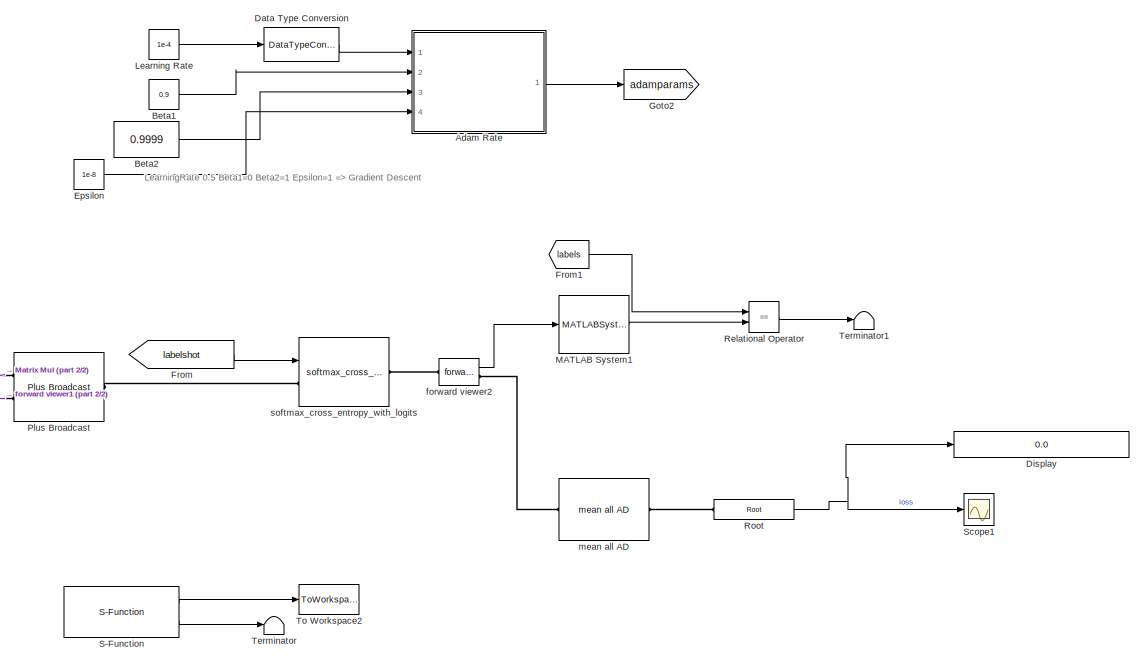
[diagram: root canvas - part 1/2, right side, full height]
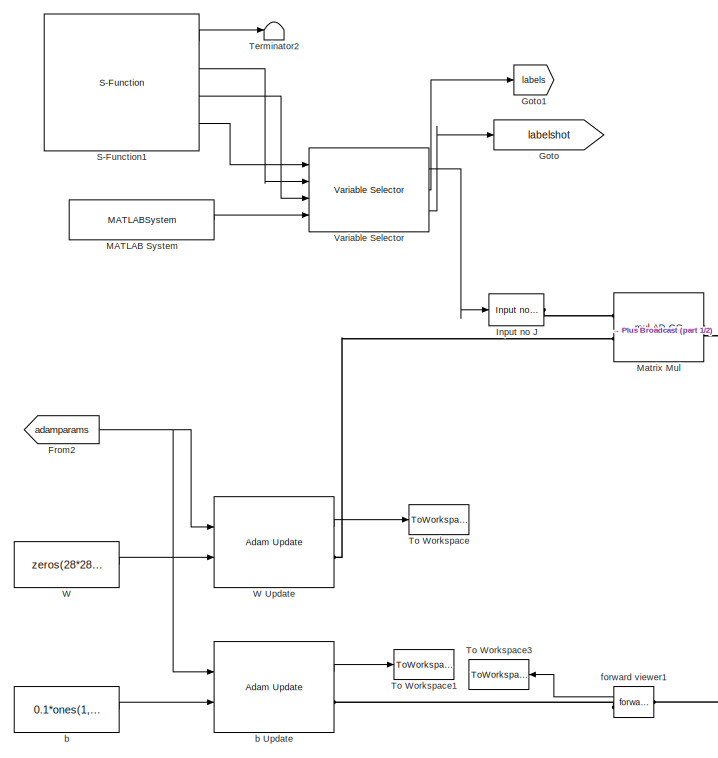
[diagram: root canvas - part 2/2, left side, full height]
MODEL slx_7c7939cf6449
KIND model
CONFIG AbsTol = auto
CONFIG EnableMultiTasking = off
CONFIG FixedStep = 1
CONFIG MaxStep = auto
CONFIG MinStep = auto
CONFIG RelTol = 1e-3
CONFIG SampleTimeConstraint = Unconstrained
CONFIG Solver = FixedStepDiscrete
CONFIG SolverName = FixedStepDiscrete
CONFIG StartTime = 0.0
CONFIG StopTime = 1000
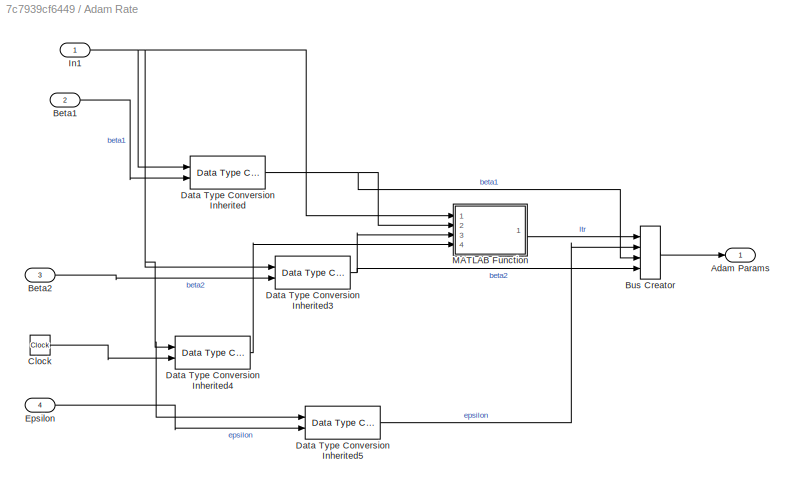
BLOCK [SubSystem] Adam Rate
  Ports = [4, 1]
  RequestExecContextInheritance = off
  Variant = off
BLOCK [Outport] Adam Rate/Adam Params
  IconDisplay = Port number
BLOCK [Inport] Adam Rate/Beta1
  IconDisplay = Port number
  Port = 2
BLOCK [Inport] Adam Rate/Beta2
  IconDisplay = Port number
  Port = 3
BLOCK [BusCreator] Adam Rate/Bus Creator
  DisplayOption = bar
  InheritFromInputs = on
  Inputs = 4
  Ports = [4, 1]
BLOCK [Clock] Adam Rate/Clock
BLOCK [Reference] Adam Rate/Data Type Conversion Inherited  REF=simulink/Signal
Attributes/Data Type
Conversion
Inherited
  Ports = [2, 1]
  SourceBlock = simulink/Signal\nAttributes/Data Type\nConversion\nInherited
  SourceProductBaseCode = SL
  SourceProductName = Simulink
  SourceType = Conversion Inherited
BLOCK [Reference] Adam Rate/Data Type Conversion Inherited3  REF=simulink/Signal
Attributes/Data Type
Conversion
Inherited
  Ports = [2, 1]
  SourceBlock = simulink/Signal\nAttributes/Data Type\nConversion\nInherited
  SourceProductBaseCode = SL
  SourceProductName = Simulink
  SourceType = Conversion Inherited
BLOCK [Reference] Adam Rate/Data Type Conversion Inherited4  REF=simulink/Signal
Attributes/Data Type
Conversion
Inherited
  Ports = [2, 1]
  SourceBlock = simulink/Signal\nAttributes/Data Type\nConversion\nInherited
  SourceProductBaseCode = SL
  SourceProductName = Simulink
  SourceType = Conversion Inherited
BLOCK [Reference] Adam Rate/Data Type Conversion Inherited5  REF=simulink/Signal
Attributes/Data Type
Conversion
Inherited
  Ports = [2, 1]
  SourceBlock = simulink/Signal\nAttributes/Data Type\nConversion\nInherited
  SourceProductBaseCode = SL
  SourceProductName = Simulink
  SourceType = Conversion Inherited
BLOCK [Inport] Adam Rate/Epsilon
  IconDisplay = Port number
  Port = 4
BLOCK [Inport] Adam Rate/In1
  IconDisplay = Port number
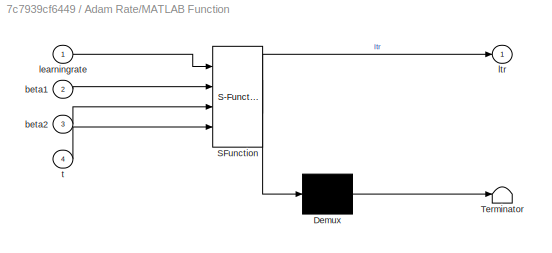
BLOCK [SubSystem] Adam Rate/MATLAB Function
  ErrorFcn = Stateflow.Translate.translate
  PermitHierarchicalResolution = ExplicitOnly
  Ports = [4, 1]
  RequestExecContextInheritance = off
  SFBlockType = MATLAB Function
  TreatAsAtomicUnit = on
  Variant = off
BLOCK [Demux] Adam Rate/MATLAB Function/ Demux 
  Outputs = 1
  Ports = [1, 1]
BLOCK [S-Function] Adam Rate/MATLAB Function/ SFunction 
  EnableBusSupport = on
  FunctionName = sf_sfun
  PortCounts = [4 2]
  Ports = [4, 2]
  SFcnIsStateOwnerBlock = off
  SFunctionDeploymentMode = off
  Tag = Stateflow S-Function mnist_softmax_adam 2
BLOCK [Terminator] Adam Rate/MATLAB Function/ Terminator 
BLOCK [Inport] Adam Rate/MATLAB Function/beta1
  IconDisplay = Port number
  Port = 2
BLOCK [Inport] Adam Rate/MATLAB Function/beta2
  IconDisplay = Port number
  Port = 3
BLOCK [Inport] Adam Rate/MATLAB Function/learningrate
  IconDisplay = Port number
BLOCK [Outport] Adam Rate/MATLAB Function/ltr
  IconDisplay = Port number
BLOCK [Inport] Adam Rate/MATLAB Function/t
  IconDisplay = Port number
  Port = 4
BLOCK [Constant] Beta1
  Value = 0.9
BLOCK [Constant] Beta2
  Value = 0.9999
BLOCK [DataTypeConversion] Data Type Conversion
  OutDataTypeStr = single
  RndMeth = Floor
  SaturateOnIntegerOverflow = off
BLOCK [Display] Display
  Decimation = 1
  Ports = [1]
BLOCK [Constant] Epsilon
  Value = 1e-8
BLOCK [From] From
  GotoTag = labelshot
BLOCK [From] From1
  GotoTag = labels
BLOCK [From] From2
  GotoTag = adamparams
BLOCK [Goto] Goto
  GotoTag = labelshot
BLOCK [Goto] Goto1
  GotoTag = labels
BLOCK [Goto] Goto2
  GotoTag = adamparams
BLOCK [Reference] Input no J  REF=ad_blocks/Input no J  (lib defined in slx_3af8d3de87d3)
  Ports = [1, 0, 0, 0, 0, 0, 1]
  SourceBlock = ad_blocks/Input no J
BLOCK [Constant] Learning Rate
  Value = 1e-4
BLOCK [MATLABSystem] MATLAB System
  MaskDisplay = disp('MnistSystemInt');\nport_label('output',1,'indices');
  MaskType = MnistSystemInt
  Ports = [0, 1]
  SimulateUsing = Interpreted execution
  System = MnistSystemInt
  items = 100
  shuffle = 0
  trainset = 1
BLOCK [MATLABSystem] MATLAB System1
  MaskDisplay = disp('ArgmaxSystemD2');\nport_label('input',1,'x');\nport_label('output',1,'y');
  MaskType = ArgmaxSystemD2
  Ports = [1, 1]
  SimulateUsing = Code generation
  System = ArgmaxSystemD2
BLOCK [Reference] Matrix Mul  REF=ad_blocks/mul AD CC  (lib defined in slx_3af8d3de87d3)
  Ports = [0, 0, 0, 0, 0, 2, 1]
  SourceBlock = ad_blocks/mul AD CC
  SourceType = SubSystem
BLOCK [Reference] Plus Broadcast  REF=ad_blocks/Plus Broadcast  (lib defined in slx_3af8d3de87d3)
  Ports = [0, 0, 0, 0, 0, 2, 1]
  SourceBlock = ad_blocks/Plus Broadcast
  SourceType = SubSystem
BLOCK [RelationalOperator] Relational Operator
  InputSameDT = off
  Operator = ==
  OutDataTypeStr = boolean
  Ports = [2, 1]
  RndMeth = Simplest
BLOCK [Reference] Root  REF=ad_blocks/Root  (lib defined in slx_3af8d3de87d3)
  Description = Top level AD block: gets the incoming value, pushes the scalar 1 gradient
  Ports = [0, 1, 0, 0, 0, 1]
  SourceBlock = ad_blocks/Root
BLOCK [S-Function] S-Function
  EnableBusSupport = off
  FunctionName = SyncTime
  Parameters = dt
  Ports = [0, 2]
  Priority = 1024
  SFcnIsStateOwnerBlock = off
  SFunctionDeploymentMode = off
BLOCK [S-Function] S-Function1
  EnableBusSupport = off
  FunctionName = sfun_loadmnist
  Parameters = 1
  Ports = [0, 4]
  SFcnIsStateOwnerBlock = off
  SFunctionDeploymentMode = off
BLOCK [Scope] Scope1
  Commented = on
  NumInputPorts = 1
  Ports = [1]
  ScopeSpecificationString = Simulink.scopes.TimeScopeBlockCfg('CurrentConfiguration', extmgr.ConfigurationSet(extmgr.Configuration('Core','General UI',true),extmgr.Configuration('Core','Source UI',true),extmgr.Configuration('Sources','WiredSimulink',true,'DataLoggingVariableName','ScopeData1'),extmgr.Configuration('Visuals','Time Domain',true,'SerializedDisplays',{struct('MinYLimReal','-0.05042','MaxYLimReal','2.56403','YLab...<+1389ch>
BLOCK [Terminator] Terminator
BLOCK [Terminator] Terminator1
BLOCK [Terminator] Terminator2
BLOCK [ToWorkspace] To Workspace
  FixptAsFi = on
  MaxDataPoints = inf
  Ports = [1]
  SampleTime = -1
  Save2DSignal = 3-D array (concatenate along third dimension)
  SaveFormat = Timeseries
  VariableName = Wout
BLOCK [ToWorkspace] To Workspace1
  FixptAsFi = on
  MaxDataPoints = inf
  Ports = [1]
  SampleTime = -1
  Save2DSignal = 3-D array (concatenate along third dimension)
  SaveFormat = Timeseries
  VariableName = bout
BLOCK [ToWorkspace] To Workspace2
  FixptAsFi = on
  MaxDataPoints = inf
  Ports = [1]
  SampleTime = 1
  Save2DSignal = 3-D array (concatenate along third dimension)
  SaveFormat = Timeseries
  VariableName = realtout
BLOCK [ToWorkspace] To Workspace3
  FixptAsFi = on
  MaxDataPoints = inf
  Ports = [1]
  SampleTime = -1
  Save2DSignal = 3-D array (concatenate along third dimension)
  SaveFormat = Timeseries
  VariableName = Jb
BLOCK [Reference] Variable Selector  REF=dspindex/Variable
Selector
  Ports = [4, 3]
  SourceBlock = dspindex/Variable\nSelector
  SourceProductBaseCode = DS
  SourceProductName = DSP System Toolbox
  SourceType = Variable Selector
BLOCK [Constant] W
  OutDataTypeStr = Inherit: Inherit via back propagation
  Value = zeros(28*28,10)
BLOCK [Reference] W Update  REF=ad_blocks/Adam Update  (lib defined in slx_3af8d3de87d3)
  Ports = [2, 1, 0, 0, 0, 0, 1]
  SourceBlock = ad_blocks/Adam Update
  SourceType = SubSystem
BLOCK [Constant] b
  OutDataTypeStr = Inherit: Inherit via back propagation
  Value = 0.1*ones(1,10)
BLOCK [Reference] b Update  REF=ad_blocks/Adam Update  (lib defined in slx_3af8d3de87d3)
  Ports = [2, 1, 0, 0, 0, 0, 1]
  SourceBlock = ad_blocks/Adam Update
  SourceType = SubSystem
BLOCK [Reference] forward viewer1  REF=ad_blocks/forward viewer  (lib defined in slx_3af8d3de87d3)
  Ports = [0, 1, 0, 0, 0, 1, 1]
  SourceBlock = ad_blocks/forward viewer
BLOCK [Reference] forward viewer2  REF=ad_blocks/forward viewer  (lib defined in slx_3af8d3de87d3)
  Ports = [0, 1, 0, 0, 0, 1, 1]
  SourceBlock = ad_blocks/forward viewer
BLOCK [Reference] mean all AD  REF=ad_blocks/mean all AD  (lib defined in slx_3af8d3de87d3)
  Ports = [0, 0, 0, 0, 0, 1, 1]
  SourceBlock = ad_blocks/mean all AD
  SourceType = SubSystem
BLOCK [Reference] softmax_cross_entropy_with_logits  REF=ad_blocks/softmax_cross_entropy_with_logits  (lib defined in slx_3af8d3de87d3)
  Ports = [1, 0, 0, 0, 0, 1, 1]
  SourceBlock = ad_blocks/softmax_cross_entropy_with_logits
  SourceType = SubSystem
ANNOTATION (root): LearningRate 0.5 Beta1=0 Beta2=1 Epsilon=1 => Gradient Descent
LINE Adam Rate/Beta1:1 -> Adam Rate/Data Type Conversion Inherited:2
LINE Adam Rate/Beta2:1 -> Adam Rate/Data Type Conversion Inherited3:2
LINE Adam Rate/Bus Creator:1 -> Adam Rate/Adam Params:1
LINE Adam Rate/Clock:1 -> Adam Rate/Data Type Conversion Inherited4:2
NET Adam Rate/Data Type Conversion Inherited3:1 -> Adam Rate/Bus Creator:4, Adam Rate/MATLAB Function:3
LINE Adam Rate/Data Type Conversion Inherited4:1 -> Adam Rate/MATLAB Function:4
LINE Adam Rate/Data Type Conversion Inherited5:1 -> Adam Rate/Bus Creator:2
NET Adam Rate/Data Type Conversion Inherited:1 -> Adam Rate/Bus Creator:3, Adam Rate/MATLAB Function:2
LINE Adam Rate/Epsilon:1 -> Adam Rate/Data Type Conversion Inherited5:2
NET Adam Rate/In1:1 -> Adam Rate/Data Type Conversion Inherited3:1, Adam Rate/Data Type Conversion Inherited4:1, Adam Rate/Data Type Conversion Inherited5:1, Adam Rate/Data Type Conversion Inherited:1, Adam Rate/MATLAB Function:1
LINE Adam Rate/MATLAB Function:1 -> Adam Rate/Bus Creator:1
LINE Adam Rate:1 -> Goto2:1
LINE Beta1:1 -> Adam Rate:2
LINE Beta2:1 -> Adam Rate:3
LINE Data Type Conversion:1 -> Adam Rate:1
LINE Epsilon:1 -> Adam Rate:4
LINE From1:1 -> Relational Operator:1
NET From2:1 -> W Update:1, b Update:1
LINE From:1 -> softmax_cross_entropy_with_logits:1
LINE Learning Rate:1 -> Data Type Conversion:1
LINE MATLAB System1:1 -> Relational Operator:2
LINE MATLAB System:1 -> Variable Selector:4
LINE Relational Operator:1 -> Terminator1:1
NET Root:1 -> Display:1, Scope1:1
LINE S-Function1:1 -> Terminator2:1
LINE S-Function1:2 -> Variable Selector:2
LINE S-Function1:3 -> Variable Selector:3
LINE S-Function1:4 -> Variable Selector:1
LINE S-Function:1 -> To Workspace2:1
LINE S-Function:2 -> Terminator:1
LINE Variable Selector:1 -> Input no J:1
LINE Variable Selector:2 -> Goto1:1
LINE Variable Selector:3 -> Goto:1
LINE W Update:1 -> To Workspace:1
LINE W:1 -> W Update:2
LINE b Update:1 -> To Workspace1:1
LINE b:1 -> b Update:2
LINE forward viewer1:1 -> To Workspace3:1
LINE forward viewer2:1 -> MATLAB System1:1
PLINE Input no J:RConn1 -- Matrix Mul:LConn1
PLINE Matrix Mul:LConn2 -- W Update:RConn1
PLINE Matrix Mul:RConn1 -- Plus Broadcast:LConn1
PLINE Plus Broadcast:LConn2 -- forward viewer1:LConn1
PLINE Plus Broadcast:RConn1 -- softmax_cross_entropy_with_logits:LConn1
PLINE Root:LConn1 -- mean all AD:RConn1
PLINE b Update:RConn1 -- forward viewer1:RConn1
PLINE forward viewer2:LConn1 -- softmax_cross_entropy_with_logits:RConn1
PLINE forward viewer2:RConn1 -- mean all AD:LConn1
note: NET lines group one-source signal fan-out (src -> all destinations, sorted); 1:1 wires keep LINE
CHART Adam Rate/MATLAB Function states=1 transitions=1
  STATE_LABEL 'eML_blk_kernel()'
  STATE_LABEL 'SCRIPT:\nfunction ltr = fcn(learningrate,beta1,beta2,t)\n\nif beta1 == 1 || beta2 == 1\n    ltr = -learningrate;\nelse\n    ltr = - learningrate * sqrt(1 - beta2^t) / (1 - beta1^t);\nend\n'
